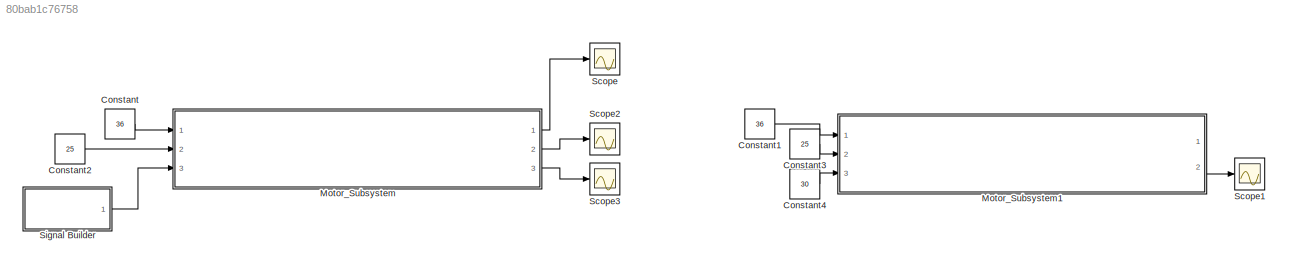
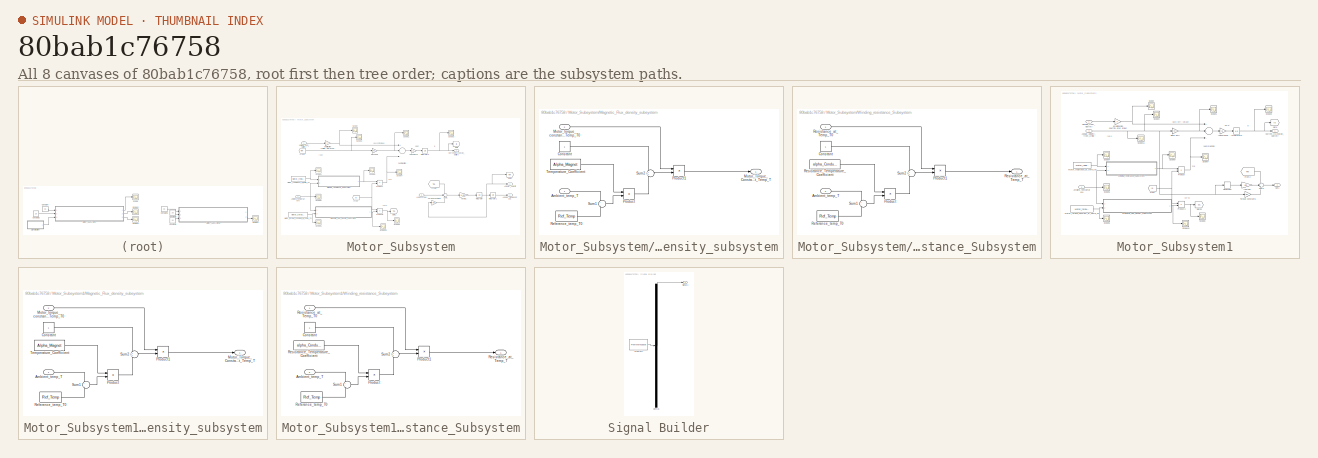
[diagram: thumbnail index - all 8 canvases of the model, root first then tree order]
MODEL slx_80bab1c76758
KIND model
CONFIG AbsTol = auto
CONFIG EnableMultiTasking = off
CONFIG FixedStep = auto
CONFIG InitFcn = Motor_torque_constant = 1.22; % NM/A\nKb = (84.5/(1000*2*pi/60)); %or  V/Wm (wm in rps) volt/rps\nJm =10.2 *10^-3; %kgm^2\nBm = ((Motor_torque_constant)*(25)/(210*2*pi/60));\nMotor_resistance =244*10^-3; %ohm\nL = 1.4*10^-3;% H(henry)\nalpha_Conductor =0.0040;\nRef_Temp = 25;\nAlpha_Magnet = -0.0020;\n
CONFIG MaxStep = 0.01
CONFIG MinStep = auto
CONFIG RelTol = 1e-3
CONFIG SampleTimeConstraint = Unconstrained
CONFIG Solver = VariableStepAuto
CONFIG SolverName = VariableStepAuto
CONFIG StartTime = 0.0
CONFIG StopTime = 200
BLOCK [Constant] Constant
  Value = 36
BLOCK [Constant] Constant1
  Value = 36
BLOCK [Constant] Constant2
  Value = 25
BLOCK [Constant] Constant3
  Value = 25
BLOCK [Constant] Constant4
  Value = 30
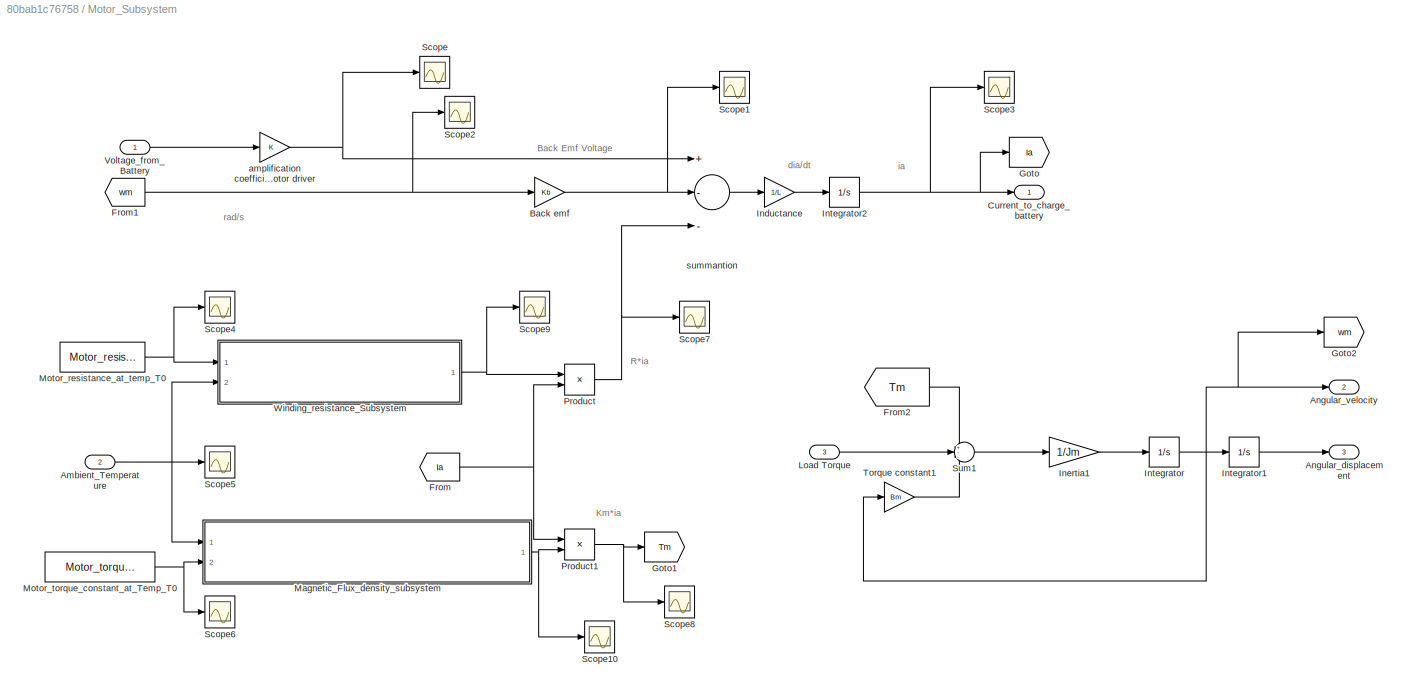
BLOCK [SubSystem] Motor_Subsystem
  Ports = [3, 3]
  RequestExecContextInheritance = off
BLOCK [Gain] Motor_Subsystem/ amplification coefficient of the motor driver
  OutDataTypeStr = Inherit: Inherit via internal rule
  ParamDataTypeStr = Inherit: Inherit via internal rule
  SaturateOnIntegerOverflow = off
BLOCK [Inport] Motor_Subsystem/Ambient_Temperature
  IconDisplay = Port number
  Port = 2
BLOCK [Outport] Motor_Subsystem/Angular_displacement
  IconDisplay = Port number
  Port = 3
BLOCK [Outport] Motor_Subsystem/Angular_velocity
  IconDisplay = Port number
  Port = 2
  VectorParamsAs1DForOutWhenUnconnected = off
BLOCK [Gain] Motor_Subsystem/Back emf
  Gain = Kb
  OutDataTypeStr = Inherit: Inherit via internal rule
  ParamDataTypeStr = Inherit: Inherit via internal rule
  SaturateOnIntegerOverflow = off
BLOCK [Outport] Motor_Subsystem/Current_to_charge_battery
  IconDisplay = Port number
  VectorParamsAs1DForOutWhenUnconnected = off
BLOCK [From] Motor_Subsystem/From
  GotoTag = Ia
BLOCK [From] Motor_Subsystem/From1
  GotoTag = wm
BLOCK [From] Motor_Subsystem/From2
  GotoTag = Tm
BLOCK [Goto] Motor_Subsystem/Goto
  GotoTag = Ia
BLOCK [Goto] Motor_Subsystem/Goto1
  GotoTag = Tm
BLOCK [Goto] Motor_Subsystem/Goto2
  GotoTag = wm
BLOCK [Gain] Motor_Subsystem/Inductance
  Gain = 1/L
  OutDataTypeStr = Inherit: Inherit via internal rule
  ParamDataTypeStr = Inherit: Inherit via internal rule
  SaturateOnIntegerOverflow = off
BLOCK [Gain] Motor_Subsystem/Inertia1
  Gain = 1/Jm
  OutDataTypeStr = Inherit: Inherit via internal rule
  ParamDataTypeStr = Inherit: Inherit via internal rule
  SaturateOnIntegerOverflow = off
BLOCK [Integrator] Motor_Subsystem/Integrator
  Ports = [1, 1]
BLOCK [Integrator] Motor_Subsystem/Integrator1
  Ports = [1, 1]
BLOCK [Integrator] Motor_Subsystem/Integrator2
  Ports = [1, 1]
BLOCK [Inport] Motor_Subsystem/Load Torque
  IconDisplay = Port number
  Port = 3
BLOCK [SubSystem] Motor_Subsystem/Magnetic_Flux_density_subsystem
  Ports = [2, 1]
  RequestExecContextInheritance = off
BLOCK [Inport] Motor_Subsystem/Magnetic_Flux_density_subsystem/Ambient_temp_T
  IconDisplay = Port number
BLOCK [Constant] Motor_Subsystem/Magnetic_Flux_density_subsystem/Constant
BLOCK [Outport] Motor_Subsystem/Magnetic_Flux_density_subsystem/Motor_Torque_Constant_at_Temp_T
  IconDisplay = Port number
  VectorParamsAs1DForOutWhenUnconnected = off
BLOCK [Inport] Motor_Subsystem/Magnetic_Flux_density_subsystem/Motor_torque_constant_at_Temp_T0
  IconDisplay = Port number
  Port = 2
BLOCK [Product] Motor_Subsystem/Magnetic_Flux_density_subsystem/Product
  InputSameDT = off
  OutDataTypeStr = Inherit: Inherit via internal rule
  Ports = [2, 1]
  RndMeth = Floor
  SaturateOnIntegerOverflow = off
BLOCK [Product] Motor_Subsystem/Magnetic_Flux_density_subsystem/Product1
  InputSameDT = off
  OutDataTypeStr = Inherit: Inherit via internal rule
  Ports = [2, 1]
  RndMeth = Floor
  SaturateOnIntegerOverflow = off
BLOCK [Constant] Motor_Subsystem/Magnetic_Flux_density_subsystem/Reference_temp_T0
  Value = Ref_Temp
BLOCK [Sum] Motor_Subsystem/Magnetic_Flux_density_subsystem/Sum1
  IconShape = round
  InputSameDT = off
  Inputs = +-
  OutDataTypeStr = Inherit: Inherit via internal rule
  Ports = [2, 1]
  SaturateOnIntegerOverflow = off
BLOCK [Sum] Motor_Subsystem/Magnetic_Flux_density_subsystem/Sum2
  IconShape = round
  InputSameDT = off
  OutDataTypeStr = Inherit: Inherit via internal rule
  Ports = [2, 1]
  SaturateOnIntegerOverflow = off
BLOCK [Constant] Motor_Subsystem/Magnetic_Flux_density_subsystem/Temperature_Coefficient
  Value = Alpha_Magnet
BLOCK [Constant] Motor_Subsystem/Motor_resistance_at_temp_T0
  Value = Motor_resistance
BLOCK [Constant] Motor_Subsystem/Motor_torque_constant_at_Temp_T0
  Value = Motor_torque_constant
BLOCK [Product] Motor_Subsystem/Product
  InputSameDT = off
  OutDataTypeStr = Inherit: Inherit via internal rule
  Ports = [2, 1]
  RndMeth = Floor
  SaturateOnIntegerOverflow = off
BLOCK [Product] Motor_Subsystem/Product1
  InputSameDT = off
  OutDataTypeStr = Inherit: Inherit via internal rule
  Ports = [2, 1]
  RndMeth = Floor
  SaturateOnIntegerOverflow = off
BLOCK [Scope] Motor_Subsystem/Scope
  Floating = off
  NumInputPorts = 1
  Ports = [1]
  ScopeSpecificationString = Simulink.scopes.TimeScopeBlockCfg('CurrentConfiguration', extmgr.ConfigurationSet(extmgr.Configuration('Core','General UI',true),extmgr.Configuration('Core','Source UI',true),extmgr.Configuration('Sources','WiredSimulink',true,'DataLoggingVariableName','ScopeData1'),extmgr.Configuration('Visuals','Time Domain',true,'SerializedDisplays',{struct('MinYLimReal','26.00000','MaxYLimReal','46.00000','YLa...<+1554ch>
BLOCK [Scope] Motor_Subsystem/Scope1
  Floating = off
  NumInputPorts = 1
  Ports = [1]
  ScopeSpecificationString = Simulink.scopes.TimeScopeBlockCfg('CurrentConfiguration', extmgr.ConfigurationSet(extmgr.Configuration('Core','General UI',true),extmgr.Configuration('Core','Source UI',true),extmgr.Configuration('Sources','WiredSimulink',true,'DataLoggingVariableName','ScopeData2'),extmgr.Configuration('Visuals','Time Domain',true,'SerializedDisplays',{struct('MinYLimReal','-3.86364','MaxYLimReal','34.77276','YLa...<+1371ch>
BLOCK [Scope] Motor_Subsystem/Scope10
  Floating = off
  NumInputPorts = 1
  Ports = [1]
  ScopeSpecificationString = Simulink.scopes.TimeScopeBlockCfg('CurrentConfiguration', extmgr.ConfigurationSet(extmgr.Configuration('Core','General UI',true),extmgr.Configuration('Core','Source UI',true),extmgr.Configuration('Sources','WiredSimulink',true,'DataLoggingVariableName','ScopeData2'),extmgr.Configuration('Visuals','Time Domain',true,'SerializedDisplays',{struct('MinYLimReal','0.22','MaxYLimReal','2.22','YLabelReal'...<+1505ch>
BLOCK [Scope] Motor_Subsystem/Scope2
  Floating = off
  NumInputPorts = 1
  Ports = [1]
  ScopeSpecificationString = Simulink.scopes.TimeScopeBlockCfg('CurrentConfiguration', extmgr.ConfigurationSet(extmgr.Configuration('Core','General UI',true),extmgr.Configuration('Core','Source UI',true),extmgr.Configuration('Sources','WiredSimulink',true,'DataLoggingVariableName','ScopeData3'),extmgr.Configuration('Visuals','Time Domain',true,'SerializedDisplays',{struct('MinYLimReal','50.00000','MaxYLimReal','250.00000','YL...<+1517ch>
BLOCK [Scope] Motor_Subsystem/Scope3
  Floating = off
  NumInputPorts = 1
  Ports = [1]
  ScopeSpecificationString = Simulink.scopes.TimeScopeBlockCfg('CurrentConfiguration', extmgr.ConfigurationSet(extmgr.Configuration('Core','General UI',true),extmgr.Configuration('Core','Source UI',true),extmgr.Configuration('Sources','WiredSimulink',true,'DataLoggingVariableName','ScopeData4'),extmgr.Configuration('Visuals','Time Domain',true,'SerializedDisplays',{struct('MinYLimReal','-8.37741','MaxYLimReal','75.39672','YLa...<+1445ch>
BLOCK [Scope] Motor_Subsystem/Scope4
  Floating = off
  NumInputPorts = 1
  Ports = [1]
  ScopeSpecificationString = Simulink.scopes.TimeScopeBlockCfg('CurrentConfiguration', extmgr.ConfigurationSet(extmgr.Configuration('Core','General UI',true),extmgr.Configuration('Core','Source UI',true),extmgr.Configuration('Sources','WiredSimulink',true,'DataLoggingVariableName','ScopeData5'),extmgr.Configuration('Visuals','Time Domain',true,'SerializedDisplays',{struct('MinYLimReal','0.144','MaxYLimReal','0.344','YLabelRea...<+1403ch>
BLOCK [Scope] Motor_Subsystem/Scope5
  Floating = off
  NumInputPorts = 1
  Ports = [1]
  ScopeSpecificationString = Simulink.scopes.TimeScopeBlockCfg('CurrentConfiguration', extmgr.ConfigurationSet(extmgr.Configuration('Core','General UI',true),extmgr.Configuration('Core','Source UI',true),extmgr.Configuration('Sources','WiredSimulink',true,'DataLoggingVariableName','ScopeData6'),extmgr.Configuration('Visuals','Time Domain',true),extmgr.Configuration('Tools','Plot Navigation',true),extmgr.Configuration('Tools',...<+40ch>
BLOCK [Scope] Motor_Subsystem/Scope6
  Floating = off
  NumInputPorts = 1
  Ports = [1]
  ScopeSpecificationString = Simulink.scopes.TimeScopeBlockCfg('CurrentConfiguration', extmgr.ConfigurationSet(extmgr.Configuration('Core','General UI',true),extmgr.Configuration('Core','Source UI',true),extmgr.Configuration('Sources','WiredSimulink',true,'DataLoggingVariableName','ScopeData7'),extmgr.Configuration('Visuals','Time Domain',true,'SerializedDisplays',{struct('MinYLimReal','0.22','MaxYLimReal','2.22','YLabelReal'...<+1481ch>
BLOCK [Scope] Motor_Subsystem/Scope7
  Floating = off
  NumInputPorts = 1
  Ports = [1]
  ScopeSpecificationString = Simulink.scopes.TimeScopeBlockCfg('CurrentConfiguration', extmgr.ConfigurationSet(extmgr.Configuration('Core','General UI',true),extmgr.Configuration('Core','Source UI',true),extmgr.Configuration('Sources','WiredSimulink',true,'DataLoggingVariableName','ScopeData8'),extmgr.Configuration('Visuals','Time Domain',true,'SerializedDisplays',{struct('MinYLimReal','-2.04409','MaxYLimReal','18.3968','YLab...<+1437ch>
BLOCK [Scope] Motor_Subsystem/Scope8
  Floating = off
  NumInputPorts = 1
  Ports = [1]
  ScopeSpecificationString = Simulink.scopes.TimeScopeBlockCfg('CurrentConfiguration', extmgr.ConfigurationSet(extmgr.Configuration('Core','General UI',true),extmgr.Configuration('Core','Source UI',true),extmgr.Configuration('Sources','WiredSimulink',true,'DataLoggingVariableName','ScopeData9'),extmgr.Configuration('Visuals','Time Domain',true,'SerializedDisplays',{struct('MinYLimReal','-8.05442','MaxYLimReal','8.59015','YLab...<+1419ch>
BLOCK [Scope] Motor_Subsystem/Scope9
  Floating = off
  NumInputPorts = 1
  Ports = [1]
  ScopeSpecificationString = Simulink.scopes.TimeScopeBlockCfg('CurrentConfiguration', extmgr.ConfigurationSet(extmgr.Configuration('Core','General UI',true),extmgr.Configuration('Core','Source UI',true),extmgr.Configuration('Sources','WiredSimulink',true,'DataLoggingVariableName','ScopeData1'),extmgr.Configuration('Visuals','Time Domain',true,'SerializedDisplays',{struct('MinYLimReal','0.144','MaxYLimReal','0.344','YLabelRea...<+1404ch>
BLOCK [Sum] Motor_Subsystem/Sum1
  IconShape = round
  InputSameDT = off
  Inputs = +--
  OutDataTypeStr = Inherit: Inherit via internal rule
  Ports = [3, 1]
  SaturateOnIntegerOverflow = off
BLOCK [Gain] Motor_Subsystem/Torque constant1
  Gain = Bm
  OutDataTypeStr = Inherit: Inherit via internal rule
  ParamDataTypeStr = Inherit: Inherit via internal rule
  SaturateOnIntegerOverflow = off
BLOCK [Inport] Motor_Subsystem/Voltage_from_Battery
  IconDisplay = Port number
BLOCK [SubSystem] Motor_Subsystem/Winding_resistance_Subsystem
  Ports = [2, 1]
  RequestExecContextInheritance = off
BLOCK [Inport] Motor_Subsystem/Winding_resistance_Subsystem/Ambient_temp_T
  IconDisplay = Port number
  Port = 2
BLOCK [Constant] Motor_Subsystem/Winding_resistance_Subsystem/Constant
BLOCK [Product] Motor_Subsystem/Winding_resistance_Subsystem/Product
  InputSameDT = off
  OutDataTypeStr = Inherit: Inherit via internal rule
  Ports = [2, 1]
  RndMeth = Floor
  SaturateOnIntegerOverflow = off
BLOCK [Product] Motor_Subsystem/Winding_resistance_Subsystem/Product1
  InputSameDT = off
  OutDataTypeStr = Inherit: Inherit via internal rule
  Ports = [2, 1]
  RndMeth = Floor
  SaturateOnIntegerOverflow = off
BLOCK [Constant] Motor_Subsystem/Winding_resistance_Subsystem/Reference_temp_T0
  Value = Ref_Temp
BLOCK [Constant] Motor_Subsystem/Winding_resistance_Subsystem/Resistance_Temperature_Coefficient
  Value = alpha_Conductor
BLOCK [Outport] Motor_Subsystem/Winding_resistance_Subsystem/Resistance_at_Temp_T
  IconDisplay = Port number
  VectorParamsAs1DForOutWhenUnconnected = off
BLOCK [Inport] Motor_Subsystem/Winding_resistance_Subsystem/Resistance_at_Temp_T0
  IconDisplay = Port number
BLOCK [Sum] Motor_Subsystem/Winding_resistance_Subsystem/Sum1
  IconShape = round
  InputSameDT = off
  Inputs = +-
  OutDataTypeStr = Inherit: Inherit via internal rule
  Ports = [2, 1]
  SaturateOnIntegerOverflow = off
BLOCK [Sum] Motor_Subsystem/Winding_resistance_Subsystem/Sum2
  IconShape = round
  InputSameDT = off
  OutDataTypeStr = Inherit: Inherit via internal rule
  Ports = [2, 1]
  SaturateOnIntegerOverflow = off
BLOCK [Sum] Motor_Subsystem/summantion
  InputSameDT = off
  Inputs = +--
  OutDataTypeStr = Inherit: Inherit via internal rule
  Ports = [3, 1]
  SaturateOnIntegerOverflow = off
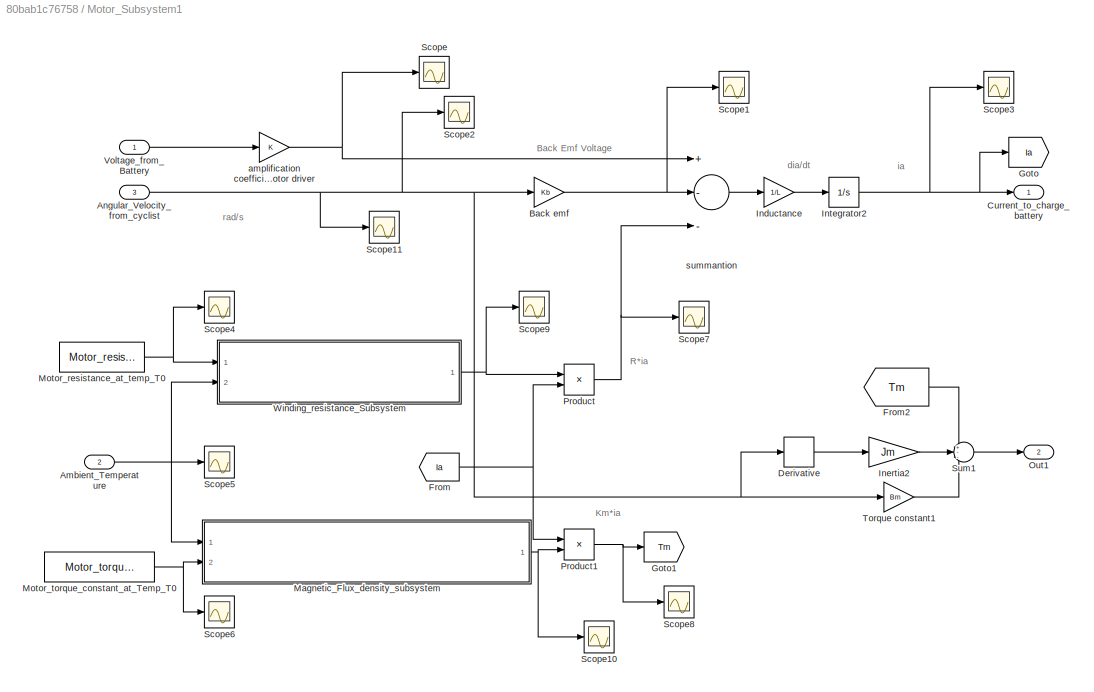
BLOCK [SubSystem] Motor_Subsystem1
  Ports = [3, 2]
  RequestExecContextInheritance = off
BLOCK [Gain] Motor_Subsystem1/ amplification coefficient of the motor driver
  OutDataTypeStr = Inherit: Inherit via internal rule
  ParamDataTypeStr = Inherit: Inherit via internal rule
  SaturateOnIntegerOverflow = off
BLOCK [Inport] Motor_Subsystem1/Ambient_Temperature
  IconDisplay = Port number
  Port = 2
BLOCK [Inport] Motor_Subsystem1/Angular_Velocity_from_cyclist
  IconDisplay = Port number
  Port = 3
BLOCK [Gain] Motor_Subsystem1/Back emf
  Gain = Kb
  OutDataTypeStr = Inherit: Inherit via internal rule
  ParamDataTypeStr = Inherit: Inherit via internal rule
  SaturateOnIntegerOverflow = off
BLOCK [Outport] Motor_Subsystem1/Current_to_charge_battery
  IconDisplay = Port number
  VectorParamsAs1DForOutWhenUnconnected = off
BLOCK [Derivative] Motor_Subsystem1/Derivative
BLOCK [From] Motor_Subsystem1/From
  GotoTag = Ia
BLOCK [From] Motor_Subsystem1/From2
  GotoTag = Tm
BLOCK [Goto] Motor_Subsystem1/Goto
  GotoTag = Ia
BLOCK [Goto] Motor_Subsystem1/Goto1
  GotoTag = Tm
BLOCK [Gain] Motor_Subsystem1/Inductance
  Gain = 1/L
  OutDataTypeStr = Inherit: Inherit via internal rule
  ParamDataTypeStr = Inherit: Inherit via internal rule
  SaturateOnIntegerOverflow = off
BLOCK [Gain] Motor_Subsystem1/Inertia2
  Gain = Jm
  OutDataTypeStr = Inherit: Inherit via internal rule
  ParamDataTypeStr = Inherit: Inherit via internal rule
  SaturateOnIntegerOverflow = off
BLOCK [Integrator] Motor_Subsystem1/Integrator2
  Ports = [1, 1]
BLOCK [SubSystem] Motor_Subsystem1/Magnetic_Flux_density_subsystem
  Ports = [2, 1]
  RequestExecContextInheritance = off
BLOCK [Inport] Motor_Subsystem1/Magnetic_Flux_density_subsystem/Ambient_temp_T
  IconDisplay = Port number
BLOCK [Constant] Motor_Subsystem1/Magnetic_Flux_density_subsystem/Constant
BLOCK [Outport] Motor_Subsystem1/Magnetic_Flux_density_subsystem/Motor_Torque_Constant_at_Temp_T
  IconDisplay = Port number
  VectorParamsAs1DForOutWhenUnconnected = off
BLOCK [Inport] Motor_Subsystem1/Magnetic_Flux_density_subsystem/Motor_torque_constant_at_Temp_T0
  IconDisplay = Port number
  Port = 2
BLOCK [Product] Motor_Subsystem1/Magnetic_Flux_density_subsystem/Product
  InputSameDT = off
  OutDataTypeStr = Inherit: Inherit via internal rule
  Ports = [2, 1]
  RndMeth = Floor
  SaturateOnIntegerOverflow = off
BLOCK [Product] Motor_Subsystem1/Magnetic_Flux_density_subsystem/Product1
  InputSameDT = off
  OutDataTypeStr = Inherit: Inherit via internal rule
  Ports = [2, 1]
  RndMeth = Floor
  SaturateOnIntegerOverflow = off
BLOCK [Constant] Motor_Subsystem1/Magnetic_Flux_density_subsystem/Reference_temp_T0
  Value = Ref_Temp
BLOCK [Sum] Motor_Subsystem1/Magnetic_Flux_density_subsystem/Sum1
  IconShape = round
  InputSameDT = off
  Inputs = +-
  OutDataTypeStr = Inherit: Inherit via internal rule
  Ports = [2, 1]
  SaturateOnIntegerOverflow = off
BLOCK [Sum] Motor_Subsystem1/Magnetic_Flux_density_subsystem/Sum2
  IconShape = round
  InputSameDT = off
  OutDataTypeStr = Inherit: Inherit via internal rule
  Ports = [2, 1]
  SaturateOnIntegerOverflow = off
BLOCK [Constant] Motor_Subsystem1/Magnetic_Flux_density_subsystem/Temperature_Coefficient
  Value = Alpha_Magnet
BLOCK [Constant] Motor_Subsystem1/Motor_resistance_at_temp_T0
  Value = Motor_resistance
BLOCK [Constant] Motor_Subsystem1/Motor_torque_constant_at_Temp_T0
  Value = Motor_torque_constant
BLOCK [Outport] Motor_Subsystem1/Out1
  IconDisplay = Port number
  Port = 2
BLOCK [Product] Motor_Subsystem1/Product
  InputSameDT = off
  OutDataTypeStr = Inherit: Inherit via internal rule
  Ports = [2, 1]
  RndMeth = Floor
  SaturateOnIntegerOverflow = off
BLOCK [Product] Motor_Subsystem1/Product1
  InputSameDT = off
  OutDataTypeStr = Inherit: Inherit via internal rule
  Ports = [2, 1]
  RndMeth = Floor
  SaturateOnIntegerOverflow = off
BLOCK [Scope] Motor_Subsystem1/Scope
  Floating = off
  NumInputPorts = 1
  Ports = [1]
  ScopeSpecificationString = Simulink.scopes.TimeScopeBlockCfg('CurrentConfiguration', extmgr.ConfigurationSet(extmgr.Configuration('Core','General UI',true),extmgr.Configuration('Core','Source UI',true),extmgr.Configuration('Sources','WiredSimulink',true,'DataLoggingVariableName','ScopeData1'),extmgr.Configuration('Visuals','Time Domain',true,'SerializedDisplays',{struct('MinYLimReal','26.00000','MaxYLimReal','46.00000','YLa...<+1554ch>
BLOCK [Scope] Motor_Subsystem1/Scope1
  Floating = off
  NumInputPorts = 1
  Ports = [1]
  ScopeSpecificationString = Simulink.scopes.TimeScopeBlockCfg('CurrentConfiguration', extmgr.ConfigurationSet(extmgr.Configuration('Core','General UI',true),extmgr.Configuration('Core','Source UI',true),extmgr.Configuration('Sources','WiredSimulink',true,'DataLoggingVariableName','ScopeData2'),extmgr.Configuration('Visuals','Time Domain',true,'SerializedDisplays',{struct('MinYLimReal','-3.86364','MaxYLimReal','34.77276','YLa...<+1371ch>
BLOCK [Scope] Motor_Subsystem1/Scope10
  Floating = off
  NumInputPorts = 1
  Ports = [1]
  ScopeSpecificationString = Simulink.scopes.TimeScopeBlockCfg('CurrentConfiguration', extmgr.ConfigurationSet(extmgr.Configuration('Core','General UI',true),extmgr.Configuration('Core','Source UI',true),extmgr.Configuration('Sources','WiredSimulink',true,'DataLoggingVariableName','ScopeData2'),extmgr.Configuration('Visuals','Time Domain',true,'SerializedDisplays',{struct('MinYLimReal','0.22','MaxYLimReal','2.22','YLabelReal'...<+1505ch>
BLOCK [Scope] Motor_Subsystem1/Scope11
  Floating = off
  NumInputPorts = 1
  Ports = [1]
  ScopeSpecificationString = Simulink.scopes.TimeScopeBlockCfg('CurrentConfiguration', extmgr.ConfigurationSet(extmgr.Configuration('Core','General UI',true),extmgr.Configuration('Core','Source UI',true),extmgr.Configuration('Sources','WiredSimulink',true,'DataLoggingVariableName','ScopeData2'),extmgr.Configuration('Visuals','Time Domain',true,'SerializedDisplays',{struct('MinYLimReal','20.00000','MaxYLimReal','40.00000','YLa...<+1429ch>
BLOCK [Scope] Motor_Subsystem1/Scope2
  Floating = off
  NumInputPorts = 1
  Ports = [1]
  ScopeSpecificationString = Simulink.scopes.TimeScopeBlockCfg('CurrentConfiguration', extmgr.ConfigurationSet(extmgr.Configuration('Core','General UI',true),extmgr.Configuration('Core','Source UI',true),extmgr.Configuration('Sources','WiredSimulink',true,'DataLoggingVariableName','ScopeData3'),extmgr.Configuration('Visuals','Time Domain',true,'SerializedDisplays',{struct('MinYLimReal','50.00000','MaxYLimReal','250.00000','YL...<+1517ch>
BLOCK [Scope] Motor_Subsystem1/Scope3
  Floating = off
  NumInputPorts = 1
  Ports = [1]
  ScopeSpecificationString = Simulink.scopes.TimeScopeBlockCfg('CurrentConfiguration', extmgr.ConfigurationSet(extmgr.Configuration('Core','General UI',true),extmgr.Configuration('Core','Source UI',true),extmgr.Configuration('Sources','WiredSimulink',true,'DataLoggingVariableName','ScopeData4'),extmgr.Configuration('Visuals','Time Domain',true,'SerializedDisplays',{struct('MinYLimReal','-40.92388','MaxYLimReal','4.5471','YLab...<+1443ch>
BLOCK [Scope] Motor_Subsystem1/Scope4
  Floating = off
  NumInputPorts = 1
  Ports = [1]
  ScopeSpecificationString = Simulink.scopes.TimeScopeBlockCfg('CurrentConfiguration', extmgr.ConfigurationSet(extmgr.Configuration('Core','General UI',true),extmgr.Configuration('Core','Source UI',true),extmgr.Configuration('Sources','WiredSimulink',true,'DataLoggingVariableName','ScopeData5'),extmgr.Configuration('Visuals','Time Domain',true,'SerializedDisplays',{struct('MinYLimReal','0.144','MaxYLimReal','0.344','YLabelRea...<+1403ch>
BLOCK [Scope] Motor_Subsystem1/Scope5
  Floating = off
  NumInputPorts = 1
  Ports = [1]
  ScopeSpecificationString = Simulink.scopes.TimeScopeBlockCfg('CurrentConfiguration', extmgr.ConfigurationSet(extmgr.Configuration('Core','General UI',true),extmgr.Configuration('Core','Source UI',true),extmgr.Configuration('Sources','WiredSimulink',true,'DataLoggingVariableName','ScopeData6'),extmgr.Configuration('Visuals','Time Domain',true),extmgr.Configuration('Tools','Plot Navigation',true),extmgr.Configuration('Tools',...<+40ch>
BLOCK [Scope] Motor_Subsystem1/Scope6
  Floating = off
  NumInputPorts = 1
  Ports = [1]
  ScopeSpecificationString = Simulink.scopes.TimeScopeBlockCfg('CurrentConfiguration', extmgr.ConfigurationSet(extmgr.Configuration('Core','General UI',true),extmgr.Configuration('Core','Source UI',true),extmgr.Configuration('Sources','WiredSimulink',true,'DataLoggingVariableName','ScopeData7'),extmgr.Configuration('Visuals','Time Domain',true,'SerializedDisplays',{struct('MinYLimReal','0.22','MaxYLimReal','2.22','YLabelReal'...<+1481ch>
BLOCK [Scope] Motor_Subsystem1/Scope7
  Floating = off
  NumInputPorts = 1
  Ports = [1]
  ScopeSpecificationString = Simulink.scopes.TimeScopeBlockCfg('CurrentConfiguration', extmgr.ConfigurationSet(extmgr.Configuration('Core','General UI',true),extmgr.Configuration('Core','Source UI',true),extmgr.Configuration('Sources','WiredSimulink',true,'DataLoggingVariableName','ScopeData8'),extmgr.Configuration('Visuals','Time Domain',true,'SerializedDisplays',{struct('MinYLimReal','-2.04409','MaxYLimReal','18.3968','YLab...<+1437ch>
BLOCK [Scope] Motor_Subsystem1/Scope8
  Floating = off
  NumInputPorts = 1
  Ports = [1]
  ScopeSpecificationString = Simulink.scopes.TimeScopeBlockCfg('CurrentConfiguration', extmgr.ConfigurationSet(extmgr.Configuration('Core','General UI',true),extmgr.Configuration('Core','Source UI',true),extmgr.Configuration('Sources','WiredSimulink',true,'DataLoggingVariableName','ScopeData9'),extmgr.Configuration('Visuals','Time Domain',true,'SerializedDisplays',{struct('MinYLimReal','-8.05442','MaxYLimReal','8.59015','YLab...<+1419ch>
BLOCK [Scope] Motor_Subsystem1/Scope9
  Floating = off
  NumInputPorts = 1
  Ports = [1]
  ScopeSpecificationString = Simulink.scopes.TimeScopeBlockCfg('CurrentConfiguration', extmgr.ConfigurationSet(extmgr.Configuration('Core','General UI',true),extmgr.Configuration('Core','Source UI',true),extmgr.Configuration('Sources','WiredSimulink',true,'DataLoggingVariableName','ScopeData1'),extmgr.Configuration('Visuals','Time Domain',true,'SerializedDisplays',{struct('MinYLimReal','0.144','MaxYLimReal','0.344','YLabelRea...<+1404ch>
BLOCK [Sum] Motor_Subsystem1/Sum1
  IconShape = round
  InputSameDT = off
  Inputs = +--
  OutDataTypeStr = Inherit: Inherit via internal rule
  Ports = [3, 1]
  SaturateOnIntegerOverflow = off
BLOCK [Gain] Motor_Subsystem1/Torque constant1
  Gain = Bm
  OutDataTypeStr = Inherit: Inherit via internal rule
  ParamDataTypeStr = Inherit: Inherit via internal rule
  SaturateOnIntegerOverflow = off
BLOCK [Inport] Motor_Subsystem1/Voltage_from_Battery
  IconDisplay = Port number
BLOCK [SubSystem] Motor_Subsystem1/Winding_resistance_Subsystem
  Ports = [2, 1]
  RequestExecContextInheritance = off
BLOCK [Inport] Motor_Subsystem1/Winding_resistance_Subsystem/Ambient_temp_T
  IconDisplay = Port number
  Port = 2
BLOCK [Constant] Motor_Subsystem1/Winding_resistance_Subsystem/Constant
BLOCK [Product] Motor_Subsystem1/Winding_resistance_Subsystem/Product
  InputSameDT = off
  OutDataTypeStr = Inherit: Inherit via internal rule
  Ports = [2, 1]
  RndMeth = Floor
  SaturateOnIntegerOverflow = off
BLOCK [Product] Motor_Subsystem1/Winding_resistance_Subsystem/Product1
  InputSameDT = off
  OutDataTypeStr = Inherit: Inherit via internal rule
  Ports = [2, 1]
  RndMeth = Floor
  SaturateOnIntegerOverflow = off
BLOCK [Constant] Motor_Subsystem1/Winding_resistance_Subsystem/Reference_temp_T0
  Value = Ref_Temp
BLOCK [Constant] Motor_Subsystem1/Winding_resistance_Subsystem/Resistance_Temperature_Coefficient
  Value = alpha_Conductor
BLOCK [Outport] Motor_Subsystem1/Winding_resistance_Subsystem/Resistance_at_Temp_T
  IconDisplay = Port number
  VectorParamsAs1DForOutWhenUnconnected = off
BLOCK [Inport] Motor_Subsystem1/Winding_resistance_Subsystem/Resistance_at_Temp_T0
  IconDisplay = Port number
BLOCK [Sum] Motor_Subsystem1/Winding_resistance_Subsystem/Sum1
  IconShape = round
  InputSameDT = off
  Inputs = +-
  OutDataTypeStr = Inherit: Inherit via internal rule
  Ports = [2, 1]
  SaturateOnIntegerOverflow = off
BLOCK [Sum] Motor_Subsystem1/Winding_resistance_Subsystem/Sum2
  IconShape = round
  InputSameDT = off
  OutDataTypeStr = Inherit: Inherit via internal rule
  Ports = [2, 1]
  SaturateOnIntegerOverflow = off
BLOCK [Sum] Motor_Subsystem1/summantion
  InputSameDT = off
  Inputs = +--
  OutDataTypeStr = Inherit: Inherit via internal rule
  Ports = [3, 1]
  SaturateOnIntegerOverflow = off
BLOCK [Scope] Scope
  Floating = off
  NumInputPorts = 1
  Ports = [1]
  ScopeSpecificationString = Simulink.scopes.TimeScopeBlockCfg('CurrentConfiguration', extmgr.ConfigurationSet(extmgr.Configuration('Core','General UI',true),extmgr.Configuration('Core','Source UI',true),extmgr.Configuration('Sources','WiredSimulink',true,'DataLoggingVariableName','ScopeData1'),extmgr.Configuration('Visuals','Time Domain',true,'SerializedDisplays',{struct('MinYLimReal','-0.20549','MaxYLimReal','0.26907','YLab...<+1422ch>
BLOCK [Scope] Scope1
  Floating = off
  NumInputPorts = 1
  Ports = [1]
  ScopeSpecificationString = Simulink.scopes.TimeScopeBlockCfg('CurrentConfiguration', extmgr.ConfigurationSet(extmgr.Configuration('Core','General UI',true),extmgr.Configuration('Core','Source UI',true),extmgr.Configuration('Sources','WiredSimulink',true,'DataLoggingVariableName','ScopeData1'),extmgr.Configuration('Visuals','Time Domain',true,'SerializedDisplays',{struct('MinYLimReal','-48.97798','MaxYLimReal','24.72535','YL...<+1454ch>
BLOCK [Scope] Scope2
  Floating = off
  NumInputPorts = 1
  Ports = [1]
  ScopeSpecificationString = Simulink.scopes.TimeScopeBlockCfg('CurrentConfiguration', extmgr.ConfigurationSet(extmgr.Configuration('Core','General UI',true),extmgr.Configuration('Core','Source UI',true),extmgr.Configuration('Sources','WiredSimulink',true,'DataLoggingVariableName','ScopeData3'),extmgr.Configuration('Visuals','Time Domain',true,'SerializedDisplays',{struct('MinYLimReal','-4.78816','MaxYLimReal','43.09344','YLa...<+1451ch>
BLOCK [Scope] Scope3
  Floating = off
  NumInputPorts = 1
  Ports = [1]
  ScopeSpecificationString = Simulink.scopes.TimeScopeBlockCfg('CurrentConfiguration', extmgr.ConfigurationSet(extmgr.Configuration('Core','General UI',true),extmgr.Configuration('Core','Source UI',true),extmgr.Configuration('Sources','WiredSimulink',true,'DataLoggingVariableName','ScopeData4'),extmgr.Configuration('Visuals','Time Domain',true,'SerializedDisplays',{struct('MinYLimReal','-1.00000','MaxYLimReal','1.00000','YLab...<+1403ch>
BLOCK [SubSystem] Signal Builder
  ClipboardFcn = sigbuilder_block('clipboard');
  CloseFcn = sigbuilder_block('close');
  ContinueFcn = sigbuilder_block('continue');
  CopyFcn = sigbuilder_block('copy');
  DeleteFcn = sigbuilder_block('delete');
  LoadFcn = sigbuilder_block('load');
  MaskHideContents = on
  ModelCloseFcn = sigbuilder_block('modelClose');
  NameChangeFcn = sigbuilder_block('namechange');
  OpenFcn = sigbuilder_block('open',[437.6 153 550.4 359.25 ]);
  PauseFcn = sigbuilder_block('pause');
  Ports = [0, 1]
  PreSaveFcn = sigbuilder_block('preSave');
  RequestExecContextInheritance = off
  StartFcn = sigbuilder_block('start');
  StopFcn = sigbuilder_block('stop');
  Tag = STV Subsys
BLOCK [Demux] Signal Builder/Demux
  Outputs = 1
  Ports = [1, 1]
  Tag = STV Demux
BLOCK [FromWorkspace] Signal Builder/FromWs
  SampleTime = 0
  Tag = STV FromWs
  VariableName = tuvar
  ZeroCross = on
BLOCK [Outport] Signal Builder/Signal 1
  IconDisplay = Port number
  Tag = STV Outport
ANNOTATION Motor_Subsystem: Back Emf Voltage
ANNOTATION Motor_Subsystem: Km*ia
ANNOTATION Motor_Subsystem: R*ia
ANNOTATION Motor_Subsystem: dia/dt
ANNOTATION Motor_Subsystem: ia
ANNOTATION Motor_Subsystem: rad/s
ANNOTATION Motor_Subsystem1: Back Emf Voltage
ANNOTATION Motor_Subsystem1: Km*ia
ANNOTATION Motor_Subsystem1: R*ia
ANNOTATION Motor_Subsystem1: dia/dt
ANNOTATION Motor_Subsystem1: ia
ANNOTATION Motor_Subsystem1: rad/s
LINE Constant1:1 -> Motor_Subsystem1:1
LINE Constant2:1 -> Motor_Subsystem:2
LINE Constant3:1 -> Motor_Subsystem1:2
LINE Constant4:1 -> Motor_Subsystem1:3
LINE Constant:1 -> Motor_Subsystem:1
NET Motor_Subsystem/ amplification coefficient of the motor driver:1 -> Motor_Subsystem/Scope:1, Motor_Subsystem/summantion:1
NET Motor_Subsystem/Ambient_Temperature:1 -> Motor_Subsystem/Magnetic_Flux_density_subsystem:1, Motor_Subsystem/Scope5:1, Motor_Subsystem/Winding_resistance_Subsystem:2
NET Motor_Subsystem/Back emf:1 -> Motor_Subsystem/Scope1:1, Motor_Subsystem/summantion:2
NET Motor_Subsystem/From1:1 -> Motor_Subsystem/Back emf:1, Motor_Subsystem/Scope2:1
LINE Motor_Subsystem/From2:1 -> Motor_Subsystem/Sum1:1
NET Motor_Subsystem/From:1 -> Motor_Subsystem/Product1:1, Motor_Subsystem/Product:2
LINE Motor_Subsystem/Inductance:1 -> Motor_Subsystem/Integrator2:1
LINE Motor_Subsystem/Inertia1:1 -> Motor_Subsystem/Integrator:1
LINE Motor_Subsystem/Integrator1:1 -> Motor_Subsystem/Angular_displacement:1
NET Motor_Subsystem/Integrator2:1 -> Motor_Subsystem/Current_to_charge_battery:1, Motor_Subsystem/Goto:1, Motor_Subsystem/Scope3:1
NET Motor_Subsystem/Integrator:1 -> Motor_Subsystem/Angular_velocity:1, Motor_Subsystem/Goto2:1, Motor_Subsystem/Integrator1:1, Motor_Subsystem/Torque constant1:1
LINE Motor_Subsystem/Load Torque:1 -> Motor_Subsystem/Sum1:2
LINE Motor_Subsystem/Magnetic_Flux_density_subsystem/Ambient_temp_T:1 -> Motor_Subsystem/Magnetic_Flux_density_subsystem/Sum1:1
LINE Motor_Subsystem/Magnetic_Flux_density_subsystem/Constant:1 -> Motor_Subsystem/Magnetic_Flux_density_subsystem/Sum2:1
LINE Motor_Subsystem/Magnetic_Flux_density_subsystem/Motor_torque_constant_at_Temp_T0:1 -> Motor_Subsystem/Magnetic_Flux_density_subsystem/Product1:1
LINE Motor_Subsystem/Magnetic_Flux_density_subsystem/Product1:1 -> Motor_Subsystem/Magnetic_Flux_density_subsystem/Motor_Torque_Constant_at_Temp_T:1
LINE Motor_Subsystem/Magnetic_Flux_density_subsystem/Product:1 -> Motor_Subsystem/Magnetic_Flux_density_subsystem/Sum2:2
LINE Motor_Subsystem/Magnetic_Flux_density_subsystem/Reference_temp_T0:1 -> Motor_Subsystem/Magnetic_Flux_density_subsystem/Sum1:2
LINE Motor_Subsystem/Magnetic_Flux_density_subsystem/Sum1:1 -> Motor_Subsystem/Magnetic_Flux_density_subsystem/Product:2
LINE Motor_Subsystem/Magnetic_Flux_density_subsystem/Sum2:1 -> Motor_Subsystem/Magnetic_Flux_density_subsystem/Product1:2
LINE Motor_Subsystem/Magnetic_Flux_density_subsystem/Temperature_Coefficient:1 -> Motor_Subsystem/Magnetic_Flux_density_subsystem/Product:1
NET Motor_Subsystem/Magnetic_Flux_density_subsystem:1 -> Motor_Subsystem/Product1:2, Motor_Subsystem/Scope10:1
NET Motor_Subsystem/Motor_resistance_at_temp_T0:1 -> Motor_Subsystem/Scope4:1, Motor_Subsystem/Winding_resistance_Subsystem:1
NET Motor_Subsystem/Motor_torque_constant_at_Temp_T0:1 -> Motor_Subsystem/Magnetic_Flux_density_subsystem:2, Motor_Subsystem/Scope6:1
NET Motor_Subsystem/Product1:1 -> Motor_Subsystem/Goto1:1, Motor_Subsystem/Scope8:1
NET Motor_Subsystem/Product:1 -> Motor_Subsystem/Scope7:1, Motor_Subsystem/summantion:3
LINE Motor_Subsystem/Sum1:1 -> Motor_Subsystem/Inertia1:1
LINE Motor_Subsystem/Torque constant1:1 -> Motor_Subsystem/Sum1:3
LINE Motor_Subsystem/Voltage_from_Battery:1 -> Motor_Subsystem/ amplification coefficient of the motor driver:1
LINE Motor_Subsystem/Winding_resistance_Subsystem/Ambient_temp_T:1 -> Motor_Subsystem/Winding_resistance_Subsystem/Sum1:1
LINE Motor_Subsystem/Winding_resistance_Subsystem/Constant:1 -> Motor_Subsystem/Winding_resistance_Subsystem/Sum2:1
LINE Motor_Subsystem/Winding_resistance_Subsystem/Product1:1 -> Motor_Subsystem/Winding_resistance_Subsystem/Resistance_at_Temp_T:1
LINE Motor_Subsystem/Winding_resistance_Subsystem/Product:1 -> Motor_Subsystem/Winding_resistance_Subsystem/Sum2:2
LINE Motor_Subsystem/Winding_resistance_Subsystem/Reference_temp_T0:1 -> Motor_Subsystem/Winding_resistance_Subsystem/Sum1:2
LINE Motor_Subsystem/Winding_resistance_Subsystem/Resistance_Temperature_Coefficient:1 -> Motor_Subsystem/Winding_resistance_Subsystem/Product:1
LINE Motor_Subsystem/Winding_resistance_Subsystem/Resistance_at_Temp_T0:1 -> Motor_Subsystem/Winding_resistance_Subsystem/Product1:1
LINE Motor_Subsystem/Winding_resistance_Subsystem/Sum1:1 -> Motor_Subsystem/Winding_resistance_Subsystem/Product:2
LINE Motor_Subsystem/Winding_resistance_Subsystem/Sum2:1 -> Motor_Subsystem/Winding_resistance_Subsystem/Product1:2
NET Motor_Subsystem/Winding_resistance_Subsystem:1 -> Motor_Subsystem/Product:1, Motor_Subsystem/Scope9:1
LINE Motor_Subsystem/summantion:1 -> Motor_Subsystem/Inductance:1
NET Motor_Subsystem1/ amplification coefficient of the motor driver:1 -> Motor_Subsystem1/Scope:1, Motor_Subsystem1/summantion:1
NET Motor_Subsystem1/Ambient_Temperature:1 -> Motor_Subsystem1/Magnetic_Flux_density_subsystem:1, Motor_Subsystem1/Scope5:1, Motor_Subsystem1/Winding_resistance_Subsystem:2
NET Motor_Subsystem1/Angular_Velocity_from_cyclist:1 -> Motor_Subsystem1/Back emf:1, Motor_Subsystem1/Derivative:1, Motor_Subsystem1/Scope11:1, Motor_Subsystem1/Scope2:1, Motor_Subsystem1/Torque constant1:1
NET Motor_Subsystem1/Back emf:1 -> Motor_Subsystem1/Scope1:1, Motor_Subsystem1/summantion:2
LINE Motor_Subsystem1/Derivative:1 -> Motor_Subsystem1/Inertia2:1
LINE Motor_Subsystem1/From2:1 -> Motor_Subsystem1/Sum1:1
NET Motor_Subsystem1/From:1 -> Motor_Subsystem1/Product1:1, Motor_Subsystem1/Product:2
LINE Motor_Subsystem1/Inductance:1 -> Motor_Subsystem1/Integrator2:1
LINE Motor_Subsystem1/Inertia2:1 -> Motor_Subsystem1/Sum1:2
NET Motor_Subsystem1/Integrator2:1 -> Motor_Subsystem1/Current_to_charge_battery:1, Motor_Subsystem1/Goto:1, Motor_Subsystem1/Scope3:1
LINE Motor_Subsystem1/Magnetic_Flux_density_subsystem/Ambient_temp_T:1 -> Motor_Subsystem1/Magnetic_Flux_density_subsystem/Sum1:1
LINE Motor_Subsystem1/Magnetic_Flux_density_subsystem/Constant:1 -> Motor_Subsystem1/Magnetic_Flux_density_subsystem/Sum2:1
LINE Motor_Subsystem1/Magnetic_Flux_density_subsystem/Motor_torque_constant_at_Temp_T0:1 -> Motor_Subsystem1/Magnetic_Flux_density_subsystem/Product1:1
LINE Motor_Subsystem1/Magnetic_Flux_density_subsystem/Product1:1 -> Motor_Subsystem1/Magnetic_Flux_density_subsystem/Motor_Torque_Constant_at_Temp_T:1
LINE Motor_Subsystem1/Magnetic_Flux_density_subsystem/Product:1 -> Motor_Subsystem1/Magnetic_Flux_density_subsystem/Sum2:2
LINE Motor_Subsystem1/Magnetic_Flux_density_subsystem/Reference_temp_T0:1 -> Motor_Subsystem1/Magnetic_Flux_density_subsystem/Sum1:2
LINE Motor_Subsystem1/Magnetic_Flux_density_subsystem/Sum1:1 -> Motor_Subsystem1/Magnetic_Flux_density_subsystem/Product:2
LINE Motor_Subsystem1/Magnetic_Flux_density_subsystem/Sum2:1 -> Motor_Subsystem1/Magnetic_Flux_density_subsystem/Product1:2
LINE Motor_Subsystem1/Magnetic_Flux_density_subsystem/Temperature_Coefficient:1 -> Motor_Subsystem1/Magnetic_Flux_density_subsystem/Product:1
NET Motor_Subsystem1/Magnetic_Flux_density_subsystem:1 -> Motor_Subsystem1/Product1:2, Motor_Subsystem1/Scope10:1
NET Motor_Subsystem1/Motor_resistance_at_temp_T0:1 -> Motor_Subsystem1/Scope4:1, Motor_Subsystem1/Winding_resistance_Subsystem:1
NET Motor_Subsystem1/Motor_torque_constant_at_Temp_T0:1 -> Motor_Subsystem1/Magnetic_Flux_density_subsystem:2, Motor_Subsystem1/Scope6:1
NET Motor_Subsystem1/Product1:1 -> Motor_Subsystem1/Goto1:1, Motor_Subsystem1/Scope8:1
NET Motor_Subsystem1/Product:1 -> Motor_Subsystem1/Scope7:1, Motor_Subsystem1/summantion:3
LINE Motor_Subsystem1/Sum1:1 -> Motor_Subsystem1/Out1:1
LINE Motor_Subsystem1/Torque constant1:1 -> Motor_Subsystem1/Sum1:3
LINE Motor_Subsystem1/Voltage_from_Battery:1 -> Motor_Subsystem1/ amplification coefficient of the motor driver:1
LINE Motor_Subsystem1/Winding_resistance_Subsystem/Ambient_temp_T:1 -> Motor_Subsystem1/Winding_resistance_Subsystem/Sum1:1
LINE Motor_Subsystem1/Winding_resistance_Subsystem/Constant:1 -> Motor_Subsystem1/Winding_resistance_Subsystem/Sum2:1
LINE Motor_Subsystem1/Winding_resistance_Subsystem/Product1:1 -> Motor_Subsystem1/Winding_resistance_Subsystem/Resistance_at_Temp_T:1
LINE Motor_Subsystem1/Winding_resistance_Subsystem/Product:1 -> Motor_Subsystem1/Winding_resistance_Subsystem/Sum2:2
LINE Motor_Subsystem1/Winding_resistance_Subsystem/Reference_temp_T0:1 -> Motor_Subsystem1/Winding_resistance_Subsystem/Sum1:2
LINE Motor_Subsystem1/Winding_resistance_Subsystem/Resistance_Temperature_Coefficient:1 -> Motor_Subsystem1/Winding_resistance_Subsystem/Product:1
LINE Motor_Subsystem1/Winding_resistance_Subsystem/Resistance_at_Temp_T0:1 -> Motor_Subsystem1/Winding_resistance_Subsystem/Product1:1
LINE Motor_Subsystem1/Winding_resistance_Subsystem/Sum1:1 -> Motor_Subsystem1/Winding_resistance_Subsystem/Product:2
LINE Motor_Subsystem1/Winding_resistance_Subsystem/Sum2:1 -> Motor_Subsystem1/Winding_resistance_Subsystem/Product1:2
NET Motor_Subsystem1/Winding_resistance_Subsystem:1 -> Motor_Subsystem1/Product:1, Motor_Subsystem1/Scope9:1
LINE Motor_Subsystem1/summantion:1 -> Motor_Subsystem1/Inductance:1
LINE Motor_Subsystem1:2 -> Scope1:1
LINE Motor_Subsystem:1 -> Scope:1
LINE Motor_Subsystem:2 -> Scope2:1
LINE Motor_Subsystem:3 -> Scope3:1
LINE Signal Builder:1 -> Motor_Subsystem:3
note: NET lines group one-source signal fan-out (src -> all destinations, sorted); 1:1 wires keep LINE
